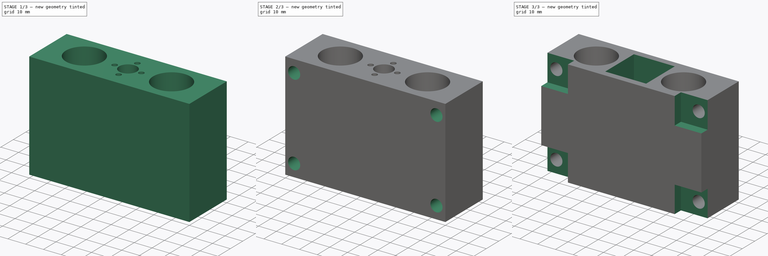
[diagram: build sequence overview — one tinted view per stage of 3, left to right]
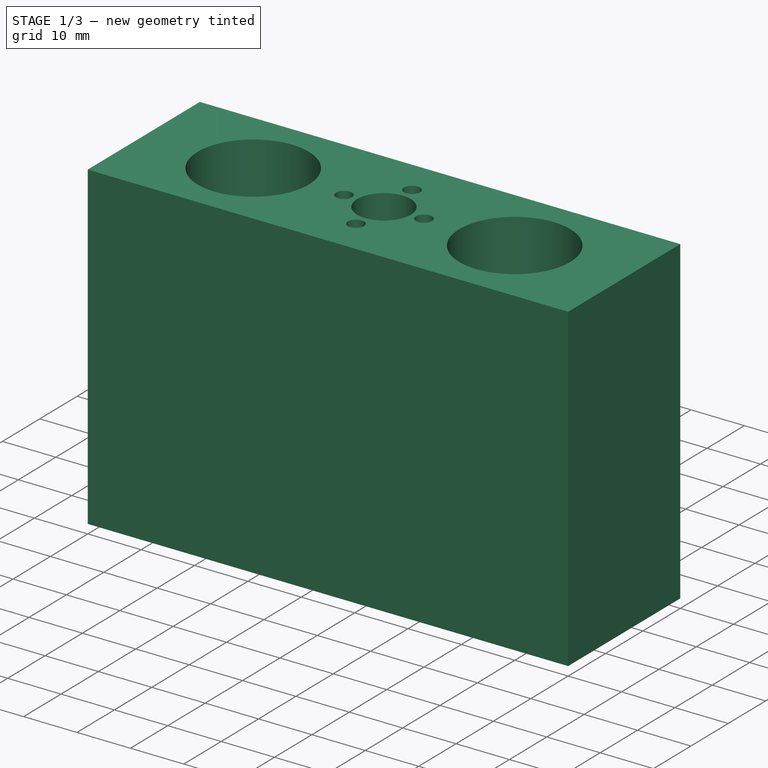
[diagram: stage 1 of 3 — iso view after this stage's code; geometry added in this stage tinted green]
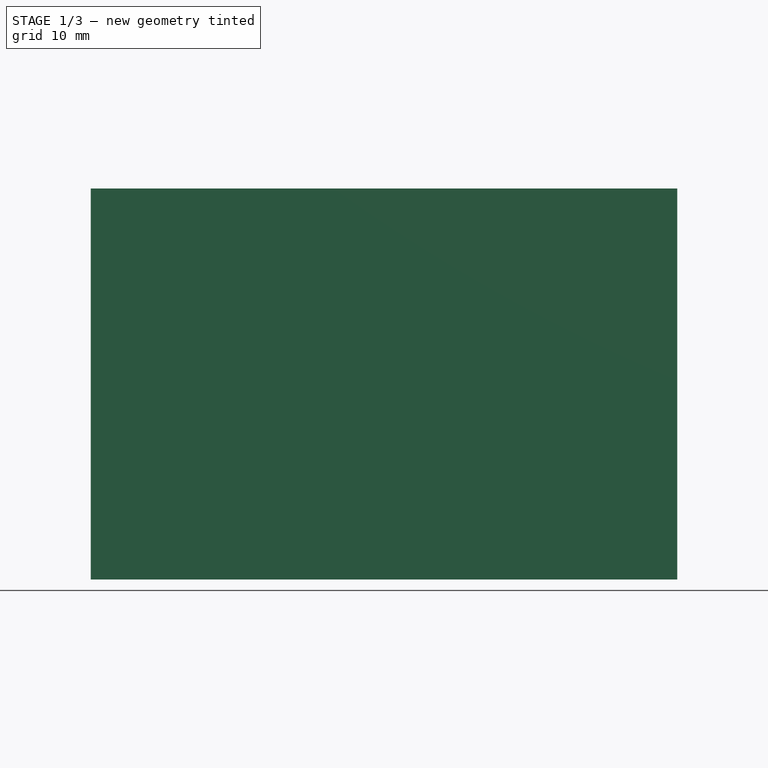
[diagram: stage 1 of 3 — front view after this stage's code; geometry added in this stage tinted green]
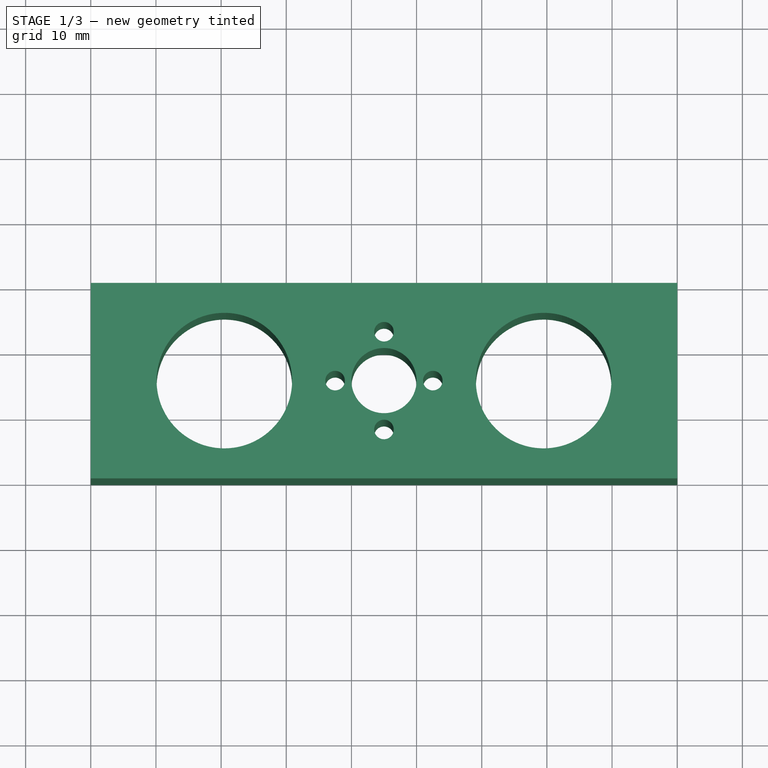
[diagram: stage 1 of 3 — top view after this stage's code; geometry added in this stage tinted green]
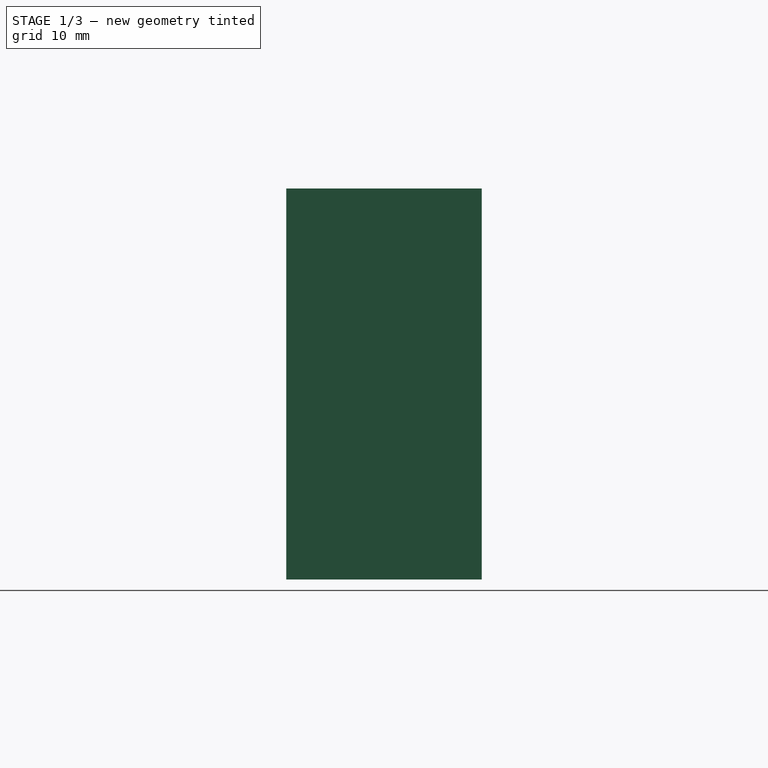
[diagram: stage 1 of 3 — right view after this stage's code; geometry added in this stage tinted green]
FCSTD DOCUMENT  (FreeCAD 0.18R4 (GitTag))
Label: support-z
License: All rights reserved
LicenseURL: http://en.wikipedia.org/wiki/All_rights_reserved
objects: Sketcher::SketchObject×5, PartDesign::Pocket×4, PartDesign::Pad×1, PartDesign::Body×1
note: 16 computed .brp shape members not serialized (recipe doc carries the construction recipe); baked Part::Feature solids carry a one-line shape summary decoded from their .brp

FEATURE [Sketcher::SketchObject] Sketch
  MapMode = 5
  Support = -> [XY_Plane]
  sketch-geometry (4):
    g0: LineSegment StartX=0 StartY=30 StartZ=0 EndX=90 EndY=30 EndZ=0
    g1: LineSegment StartX=90 StartY=30 StartZ=0 EndX=90 EndY=0 EndZ=0
    g2: LineSegment StartX=90 StartY=0 StartZ=0 EndX=0 EndY=0 EndZ=0
    g3: LineSegment StartX=0 StartY=0 StartZ=0 EndX=0 EndY=30 EndZ=0
  constraints (11):
    c: Coincident(g0,g1)
    c: Coincident(g1,g2)
    c: Coincident(g2,g3)
    c: Coincident(g3,g0)
    c: Horizontal(g0)
    c: Horizontal(g2)
    c: Vertical(g1)
    c: Vertical(g3)
    c: Coincident(g2,g-1)
    c: DistanceX(g0,g0) = 90
    c: DistanceY(g1,g1) = 30
FEATURE [PartDesign::Pad] Pad
  Length = 60
  Length2 = 100
  Profile = -> Sketch
  Type = 0
FEATURE [Sketcher::SketchObject] Sketch001
  ExternalGeometry = -> [Pad]
  MapMode = 5
  Placement = pos=(0,0,60) rot=(0,0,1;0rad)
  Support = -> [Pad]
  sketch-geometry (9):
    g0: Circle CenterX=45 CenterY=15 CenterZ=0 NormalX=0 NormalY=0 NormalZ=1 AngleXU=0 Radius=5
    g1: Circle CenterX=45 CenterY=22.5 CenterZ=0 NormalX=0 NormalY=0 NormalZ=1 AngleXU=0 Radius=1.5
    g2: Circle CenterX=37.5 CenterY=15 CenterZ=0 NormalX=0 NormalY=0 NormalZ=1 AngleXU=0 Radius=1.5
    g3: Circle CenterX=45 CenterY=7.5 CenterZ=0 NormalX=0 NormalY=0 NormalZ=1 AngleXU=0 Radius=1.5
    g4: Circle CenterX=52.5 CenterY=15 CenterZ=0 NormalX=0 NormalY=0 NormalZ=1 AngleXU=0 Radius=1.5
    g5: LineSegment [constr] StartX=0 StartY=15 StartZ=0 EndX=90.1632 EndY=15 EndZ=0
    g6: LineSegment [constr] StartX=45 StartY=29.7551 StartZ=0 EndX=45 EndY=0.180463 EndZ=0
    g7: Circle CenterX=20.5 CenterY=15 CenterZ=0 NormalX=0 NormalY=0 NormalZ=1 AngleXU=0 Radius=10.4
    g8: Circle CenterX=69.5 CenterY=15 CenterZ=0 NormalX=0 NormalY=0 NormalZ=1 AngleXU=0 Radius=10.4
  constraints (24):
    c: Diameter(g0) = 10
    c: Symmetric(g-3,g-4,g0)
    c: Equal(g1,g2)
    c: Equal(g2,g3)
    c: Equal(g3,g4)
    c: Diameter(g1) = 3
    c: Distance(g0,g2) = 7.5
    c: Distance(g1,g0) = 7.5
    c: Distance(g0,g3) = 7.5
    c: Distance(g0,g4) = 7.5
    c: Horizontal(g5)
    c: Symmetric(g-3,g-1,g5)
    c: PointOnObject(g2,g5)
    c: PointOnObject(g4,g5)
    c: Vertical(g6)
    c: PointOnObject(g0,g6)
    c: PointOnObject(g1,g6)
    c: PointOnObject(g3,g6)
    c: Equal(g8,g7)
    c: Diameter(g8) = 20.8
    c: PointOnObject(g7,g5)
    c: PointOnObject(g8,g5)
    c: DistanceX(g7,g0) = 24.5
    c: DistanceX(g0,g8) = 24.5
FEATURE [PartDesign::Pocket] Pocket
  BaseFeature = -> Pad
  Length = 60
  Length2 = 100
  Profile = -> Sketch001
  Type = 0
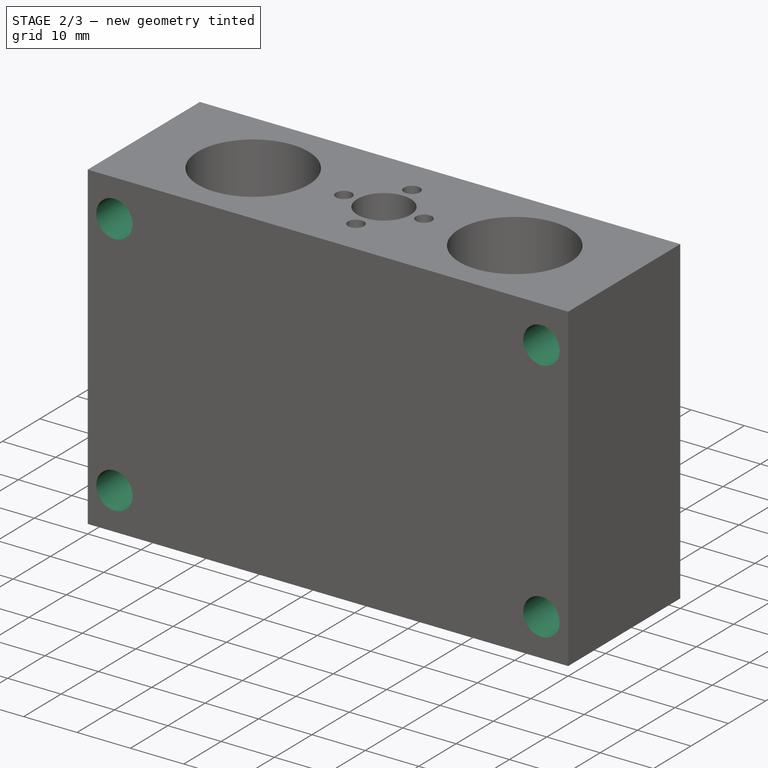
[diagram: stage 2 of 3 — iso view after this stage's code; geometry added in this stage tinted green]
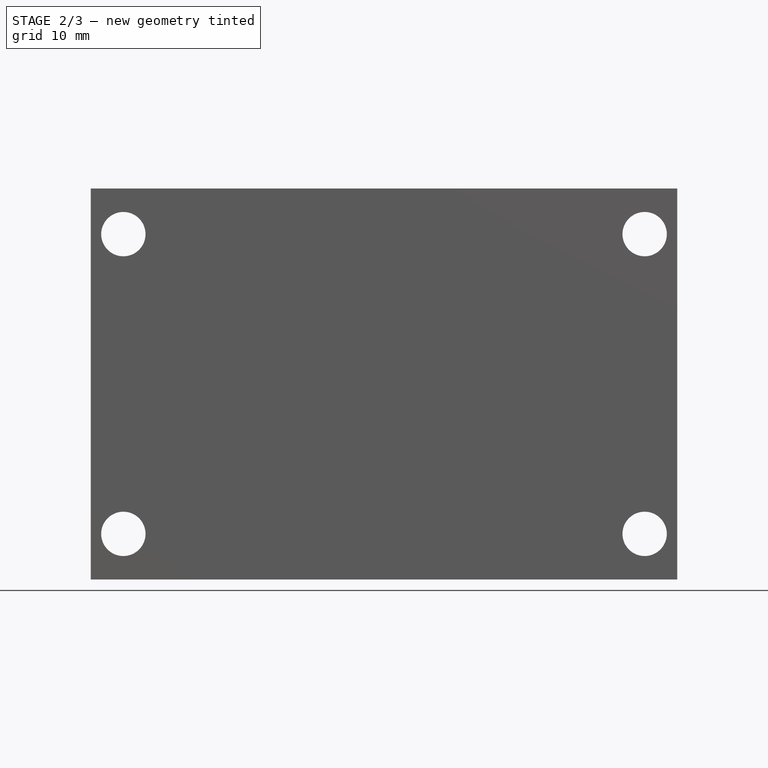
[diagram: stage 2 of 3 — front view after this stage's code; geometry added in this stage tinted green]
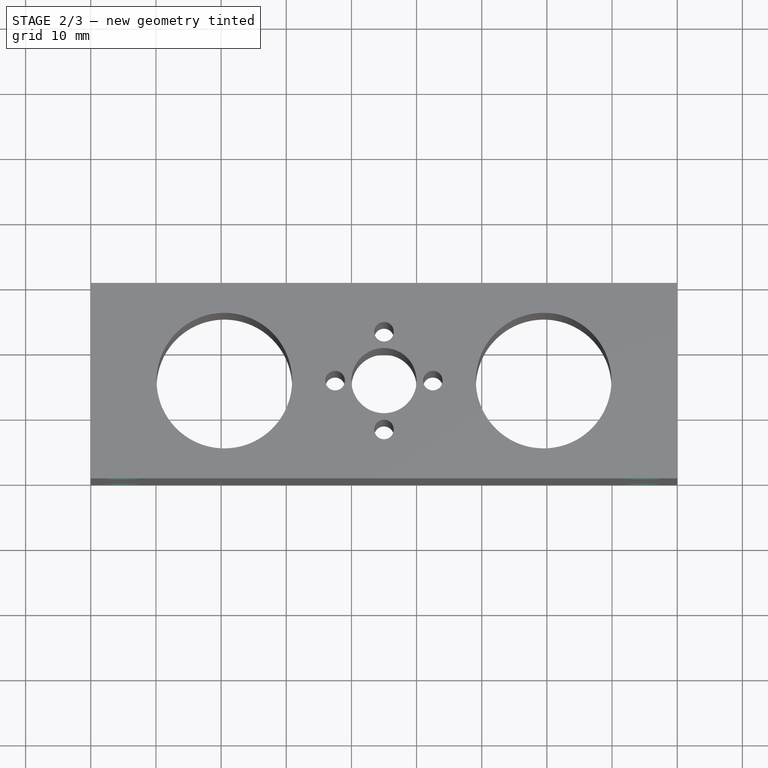
[diagram: stage 2 of 3 — top view after this stage's code; geometry added in this stage tinted green]
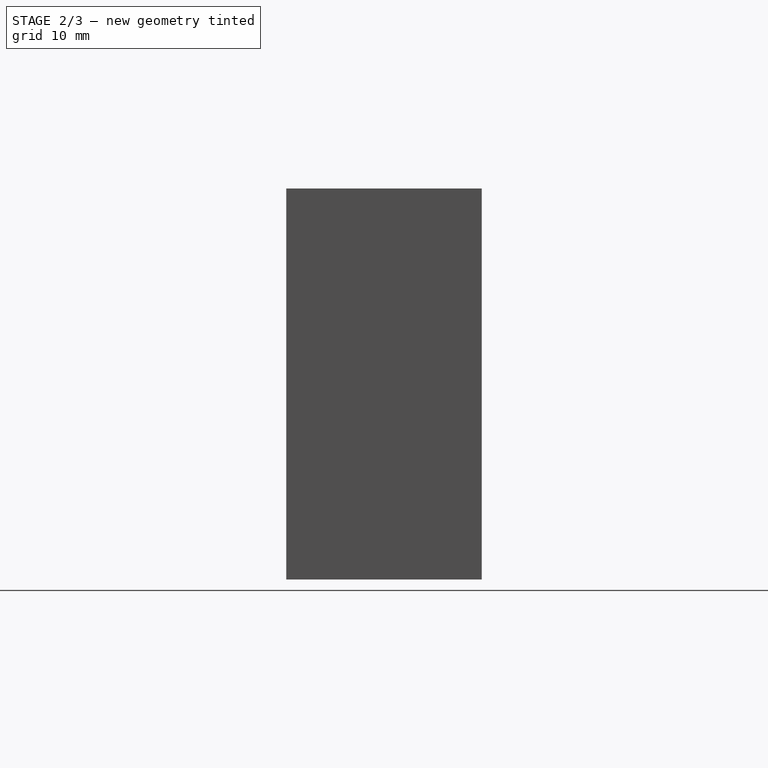
[diagram: stage 2 of 3 — right view after this stage's code; geometry added in this stage tinted green]
FEATURE [Sketcher::SketchObject] Sketch002
  ExternalGeometry = -> [Pocket]
  MapMode = 5
  Placement = pos=(0,0,0) rot=(1,0,0;1.5708rad)
  Support = -> [Pocket]
  sketch-geometry (8):
    g0: Circle CenterX=5 CenterY=53 CenterZ=0 NormalX=0 NormalY=0 NormalZ=1 AngleXU=0 Radius=3.4
    g1: LineSegment [constr] StartX=10.2352 StartY=60 StartZ=0 EndX=10.2352 EndY=0 EndZ=0
    g2: LineSegment [constr] StartX=0 StartY=60 StartZ=0 EndX=89.9005 EndY=60 EndZ=0
    g3: LineSegment [constr] StartX=89.9005 StartY=0 StartZ=0 EndX=0 EndY=0 EndZ=0
    g4: LineSegment [constr] StartX=79.9333 StartY=60 StartZ=0 EndX=79.9333 EndY=0 EndZ=0
    g5: Circle CenterX=5 CenterY=7 CenterZ=0 NormalX=0 NormalY=0 NormalZ=1 AngleXU=0 Radius=3.4
    g6: Circle CenterX=85 CenterY=53 CenterZ=0 NormalX=0 NormalY=0 NormalZ=1 AngleXU=0 Radius=3.4
    g7: Circle CenterX=85 CenterY=7 CenterZ=0 NormalX=0 NormalY=0 NormalZ=1 AngleXU=0 Radius=3.4
  constraints (22):
    c: Diameter(g0) = 6.8
    c: Vertical(g1)
    c: Vertical(g4)
    c: Horizontal(g2)
    c: Horizontal(g3)
    c: PointOnObject(g1,g3)
    c: Coincident(g-1,g3)
    c: PointOnObject(g1,g2)
    c: Coincident(g-3,g2)
    c: PointOnObject(g4,g2)
    c: PointOnObject(g4,g3)
    c: Distance(g0,g-3) = 5
    c: Equal(g7,g6)
    c: Equal(g6,g0)
    c: Equal(g0,g5)
    c: Distance(g5,g-3) = 5
    c: Distance(g5,g3) = 7
    c: Distance(g7,g3) = 7
    c: Distance(g6,g2) = 7
    c: Distance(g0,g2) = 7
    c: DistanceX(g7,g-4) = 5
    c: DistanceX(g6,g-4) = 5
FEATURE [PartDesign::Pocket] Pocket001
  BaseFeature = -> Pocket
  Length = 30
  Length2 = 100
  Profile = -> Sketch002
  Type = 0
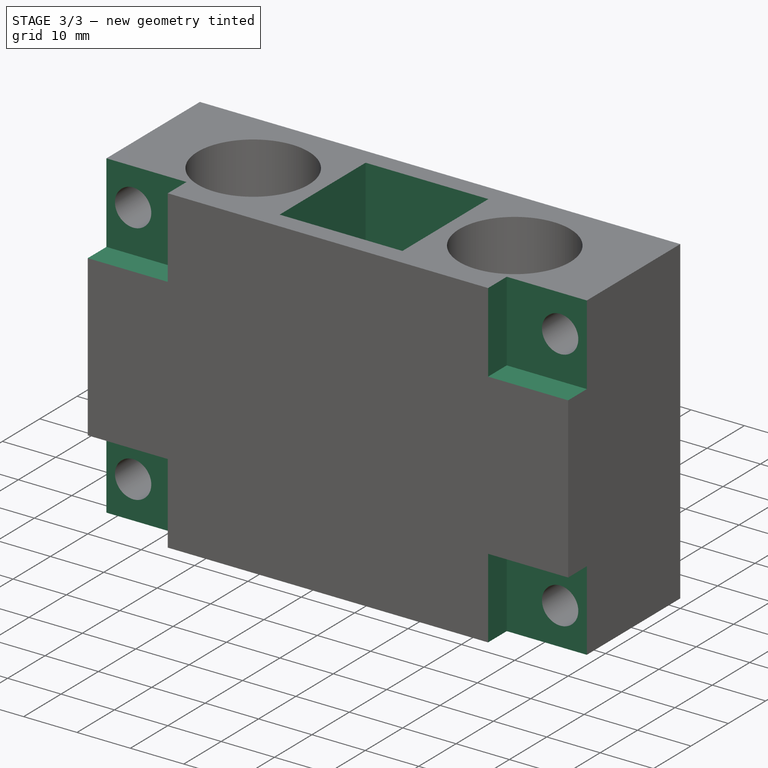
[diagram: stage 3 of 3 — iso view after this stage's code; geometry added in this stage tinted green]
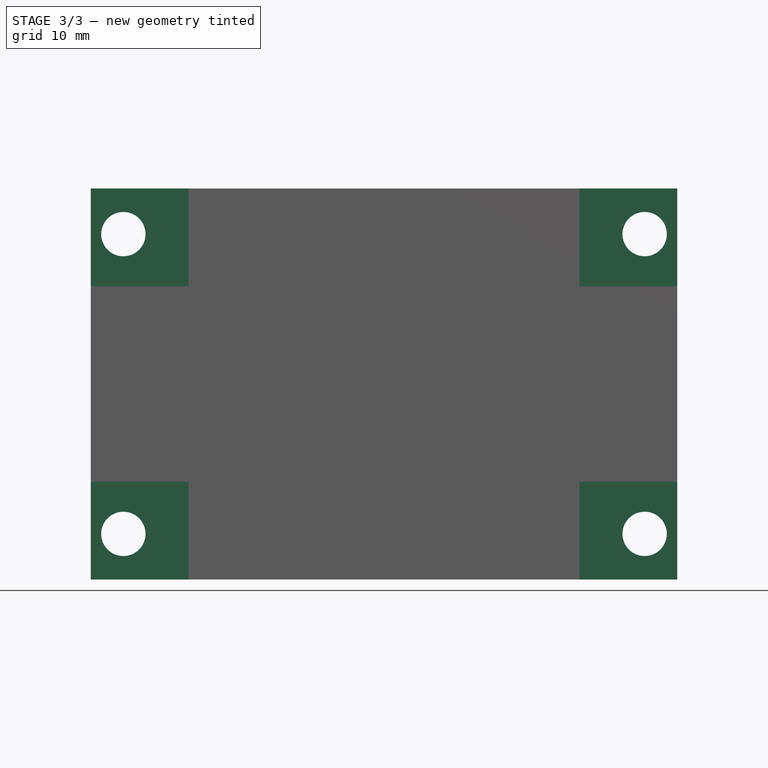
[diagram: stage 3 of 3 — front view after this stage's code; geometry added in this stage tinted green]
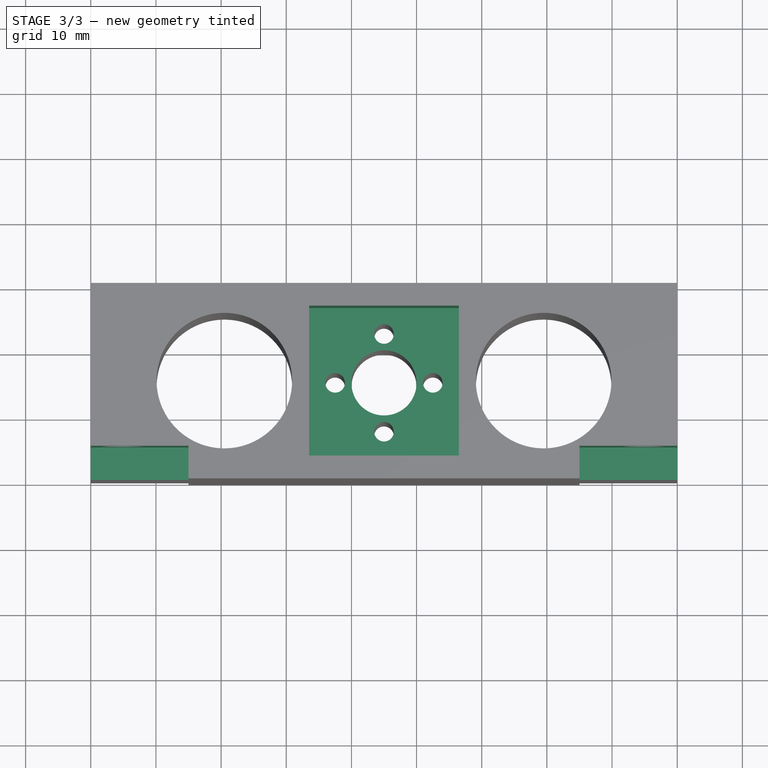
[diagram: stage 3 of 3 — top view after this stage's code; geometry added in this stage tinted green]
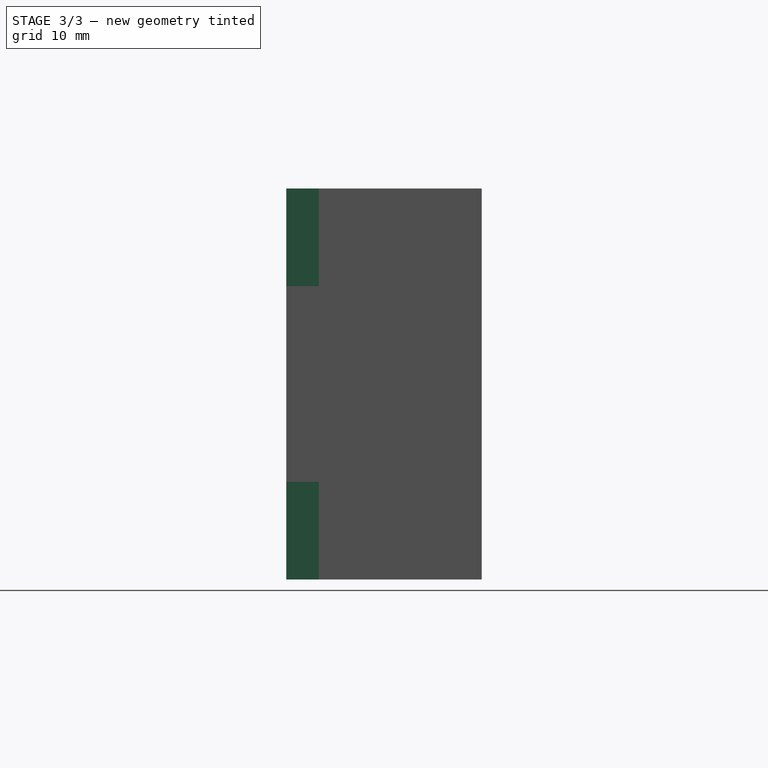
[diagram: stage 3 of 3 — right view after this stage's code; geometry added in this stage tinted green]
FEATURE [Sketcher::SketchObject] Sketch003
  ExternalGeometry = -> [Pocket001]
  MapMode = 5
  Placement = pos=(0,0,60) rot=(0,0,1;0rad)
  Support = -> [Pocket001]
  sketch-geometry (5):
    g0: LineSegment StartX=33.5 StartY=26.5 StartZ=0 EndX=56.5 EndY=26.5 EndZ=0
    g1: LineSegment StartX=56.5 StartY=26.5 StartZ=0 EndX=56.5 EndY=3.5 EndZ=0
    g2: LineSegment StartX=56.5 StartY=3.5 StartZ=0 EndX=33.5 EndY=3.5 EndZ=0
    g3: LineSegment StartX=33.5 StartY=3.5 StartZ=0 EndX=33.5 EndY=26.5 EndZ=0
    g4: GeomPoint X=45 Y=15 Z=0
  constraints (12):
    c: Coincident(g0,g1)
    c: Coincident(g1,g2)
    c: Coincident(g2,g3)
    c: Coincident(g3,g0)
    c: Horizontal(g0)
    c: Horizontal(g2)
    c: Vertical(g1)
    c: Vertical(g3)
    c: DistanceX(g0,g0) = 23
    c: DistanceY(g3,g3) = 23
    c: Symmetric(g0,g1,g4)
    c: Coincident(g-6,g4)
FEATURE [PartDesign::Pocket] Pocket002
  BaseFeature = -> Pocket001
  Length = 20
  Length2 = 100
  Profile = -> Sketch003
  Type = 0
FEATURE [Sketcher::SketchObject] Sketch004
  ExternalGeometry = -> [Pocket002]
  MapMode = 5
  Placement = pos=(0,0,0) rot=(1,0,0;1.5708rad)
  Support = -> [Pocket002]
  sketch-geometry (16):
    g0: LineSegment StartX=0 StartY=60 StartZ=0 EndX=15 EndY=60 EndZ=0
    g1: LineSegment StartX=15 StartY=60 StartZ=0 EndX=15 EndY=45 EndZ=0
    g2: LineSegment StartX=15 StartY=45 StartZ=0 EndX=0 EndY=45 EndZ=0
    g3: LineSegment StartX=0 StartY=45 StartZ=0 EndX=0 EndY=60 EndZ=0
    g4: LineSegment StartX=90 StartY=60 StartZ=0 EndX=75 EndY=60 EndZ=0
    g5: LineSegment StartX=75 StartY=60 StartZ=0 EndX=75 EndY=45 EndZ=0
    g6: LineSegment StartX=75 StartY=45 StartZ=0 EndX=90 EndY=45 EndZ=0
    g7: LineSegment StartX=90 StartY=45 StartZ=0 EndX=90 EndY=60 EndZ=0
    g8: LineSegment StartX=90 StartY=0 StartZ=0 EndX=75 EndY=0 EndZ=0
    g9: LineSegment StartX=75 StartY=0 StartZ=0 EndX=75 EndY=15 EndZ=0
    g10: LineSegment StartX=75 StartY=15 StartZ=0 EndX=90 EndY=15 EndZ=0
    g11: LineSegment StartX=90 StartY=15 StartZ=0 EndX=90 EndY=0 EndZ=0
    g12: LineSegment StartX=0 StartY=0 StartZ=0 EndX=15 EndY=0 EndZ=0
    g13: LineSegment StartX=15 StartY=0 StartZ=0 EndX=15 EndY=15 EndZ=0
    g14: LineSegment StartX=15 StartY=15 StartZ=0 EndX=0 EndY=15 EndZ=0
    g15: LineSegment StartX=0 StartY=15 StartZ=0 EndX=0 EndY=0 EndZ=0
  constraints (44):
    c: Coincident(g0,g1)
    c: Coincident(g1,g2)
    c: Coincident(g2,g3)
    c: Coincident(g3,g0)
    c: Horizontal(g0)
    c: Horizontal(g2)
    c: Vertical(g1)
    c: Vertical(g3)
    c: Coincident(g4,g5)
    c: Coincident(g5,g6)
    c: Coincident(g6,g7)
    c: Coincident(g7,g4)
    c: Horizontal(g4)
    c: Horizontal(g6)
    c: Vertical(g5)
    c: Vertical(g7)
    c: Coincident(g8,g9)
    c: Coincident(g9,g10)
    c: Coincident(g10,g11)
    c: Coincident(g11,g8)
    c: Horizontal(g8)
    c: Horizontal(g10)
    c: Vertical(g9)
    c: Vertical(g11)
    c: Coincident(g12,g13)
    c: Coincident(g13,g14)
    c: Coincident(g14,g15)
    c: Coincident(g15,g12)
    c: Horizontal(g12)
    c: Horizontal(g14)
    c: Vertical(g13)
    c: Vertical(g15)
    c: Equal(g0,g4)
    c: Equal(g4,g10)
    c: Equal(g10,g14)
    c: Equal(g14,g13)
    c: Equal(g13,g1)
    c: Equal(g1,g7)
    c: Equal(g7,g11)
    c: Coincident(g0,g-3)
    c: Coincident(g4,g-4)
    c: Coincident(g8,g-4)
    c: Coincident(g12,g-1)
    c: DistanceY(g1,g1) = 15
FEATURE [PartDesign::Pocket] Pocket003
  BaseFeature = -> Pocket002
  Length = 5
  Length2 = 100
  Profile = -> Sketch004
  Type = 0
FEATURE [PartDesign::Body] Body
  Group = -> [Sketch,Pad,Sketch001,Pocket,Sketch002,Pocket001,Sketch003,Pocket002,Sketch004,Pocket003]
  Origin = -> Origin
  Tip = -> Pocket003
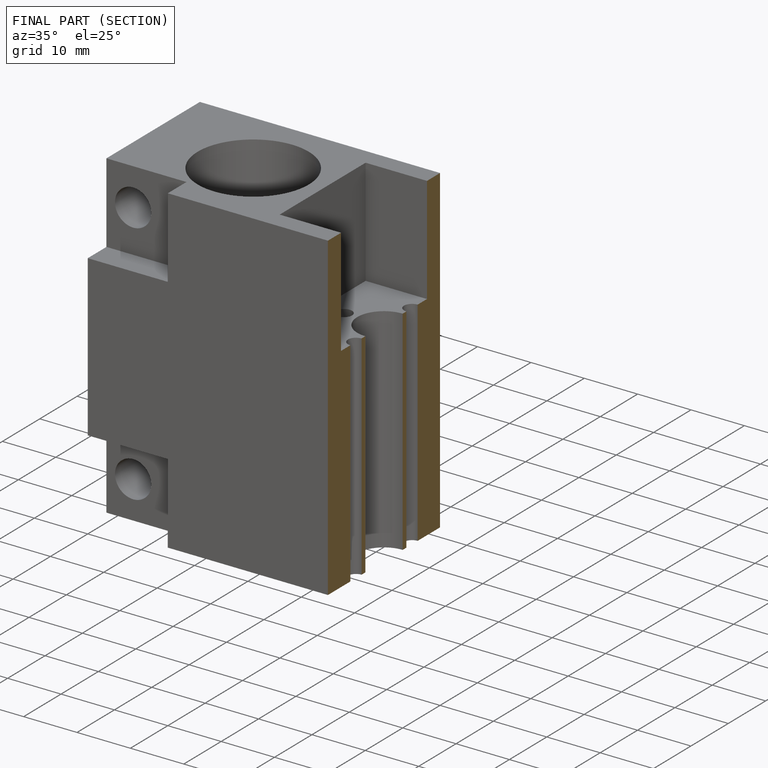
[diagram: finished part — half-section view (interior)]
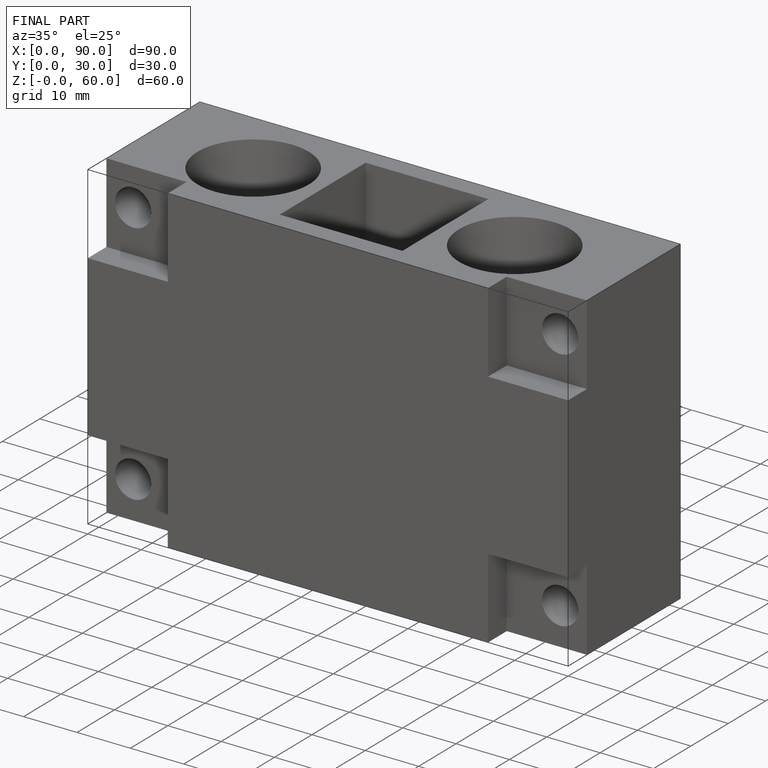
[diagram: finished part — iso view with bounding-box wireframe]
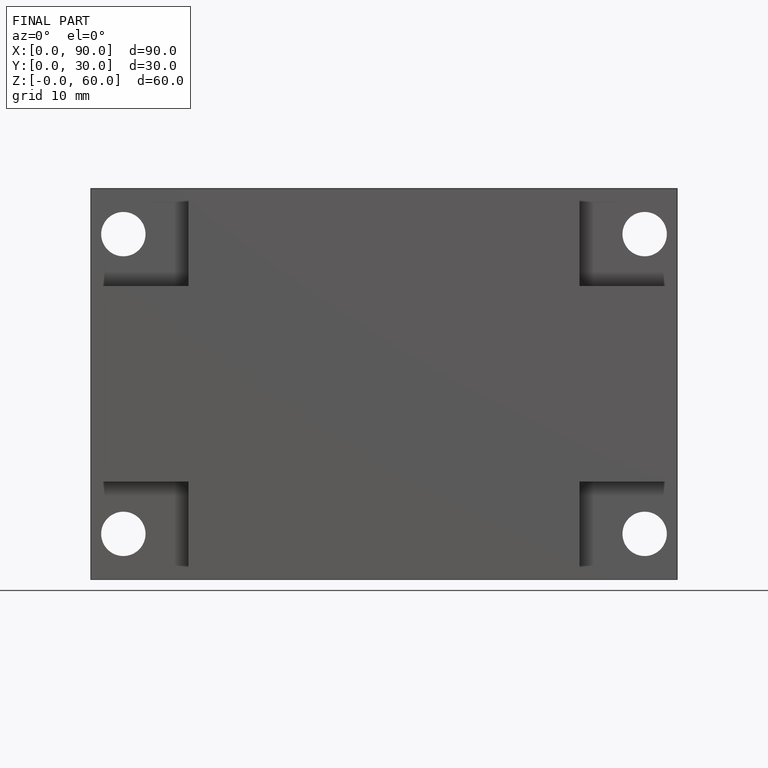
[diagram: finished part — front view with bounding-box wireframe]
